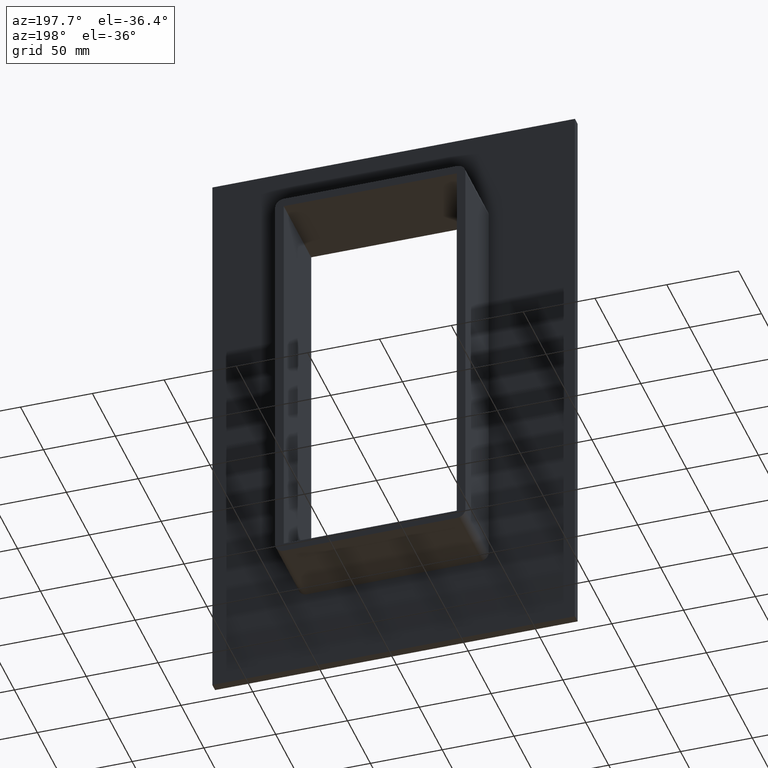
[diagram: clean part render]
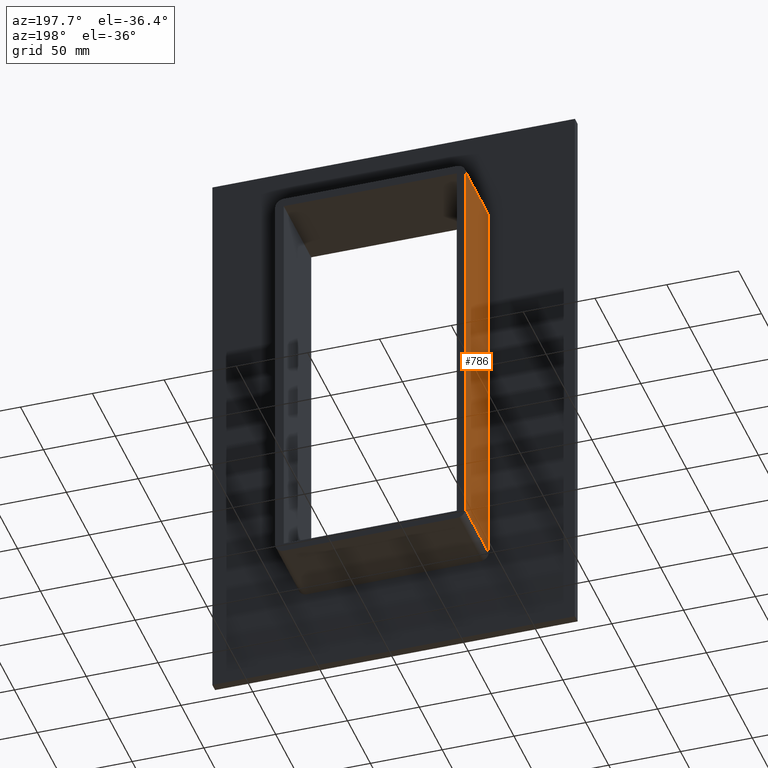
[diagram: same view with one face highlighted and labeled with its STEP entity id]
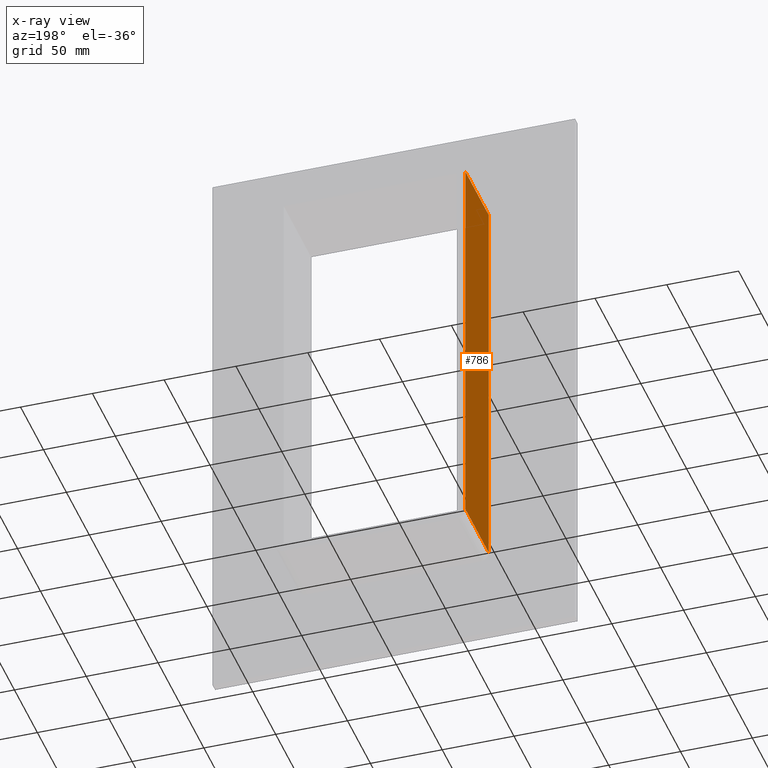
[diagram: x-ray of the same camera — body ghosted, the highlighted face saturated]
A machine part, auxiliary view. The second image highlights one B-rep face of the part: STEP entity #786.
The next image is the same camera in x-ray: the body ghosted, the highlighted face saturated — about 0% of this face is hidden behind the body in this view.
In plain terms, the highlighted planar face has unit normal (-1, 0, 0).
Its self-contained STEP definition (entity closure, byte-faithful):
#109=CARTESIAN_POINT('',(-66.249999999999986,6.000000000000001,-139.0));
#110=VERTEX_POINT('',#109);
#160=CARTESIAN_POINT('',(-66.249999999999986,6.000000000000001,139.0));
#161=VERTEX_POINT('',#160);
#169=CARTESIAN_POINT('',(-66.249999999999986,6.000000000000001,-139.0));
#170=DIRECTION('',(0.0,0.0,1.0));
#171=VECTOR('',#170,278.0);
#172=LINE('',#169,#171);
#173=EDGE_CURVE('',#110,#161,#172,.T.);
#744=CARTESIAN_POINT('',(-66.249999999999986,57.0,-139.0));
#745=VERTEX_POINT('',#744);
#746=CARTESIAN_POINT('',(-66.249999999999986,6.000000000000001,-139.0));
#747=DIRECTION('',(0.0,1.0,0.0));
#748=VECTOR('',#747,51.0);
#749=LINE('',#746,#748);
#750=EDGE_CURVE('',#110,#745,#749,.T.);
#763=CARTESIAN_POINT('',(-66.249999999999986,0.0,-145.0));
#764=DIRECTION('',(-1.0,0.0,0.0));
#765=DIRECTION('',(0.0,0.0,1.0));
#766=AXIS2_PLACEMENT_3D('',#763,#764,#765);
#767=PLANE('',#766);
#768=ORIENTED_EDGE('',*,*,#173,.T.);
#769=CARTESIAN_POINT('',(-66.249999999999986,57.0,139.0));
#770=VERTEX_POINT('',#769);
#771=CARTESIAN_POINT('',(-66.249999999999986,57.0,139.0));
#772=DIRECTION('',(0.0,-1.0,0.0));
#773=VECTOR('',#772,51.0);
#774=LINE('',#771,#773);
#775=EDGE_CURVE('',#770,#161,#774,.T.);
#776=ORIENTED_EDGE('',*,*,#775,.F.);
#777=CARTESIAN_POINT('',(-66.249999999999986,57.0,-139.0));
#778=DIRECTION('',(0.0,0.0,1.0));
#779=VECTOR('',#778,278.0);
#780=LINE('',#777,#779);
#781=EDGE_CURVE('',#745,#770,#780,.T.);
#782=ORIENTED_EDGE('',*,*,#781,.F.);
#783=ORIENTED_EDGE('',*,*,#750,.F.);
#784=EDGE_LOOP('',(#768,#776,#782,#783));
#785=FACE_OUTER_BOUND('',#784,.T.);
#786=ADVANCED_FACE('',(#785),#767,.T.);